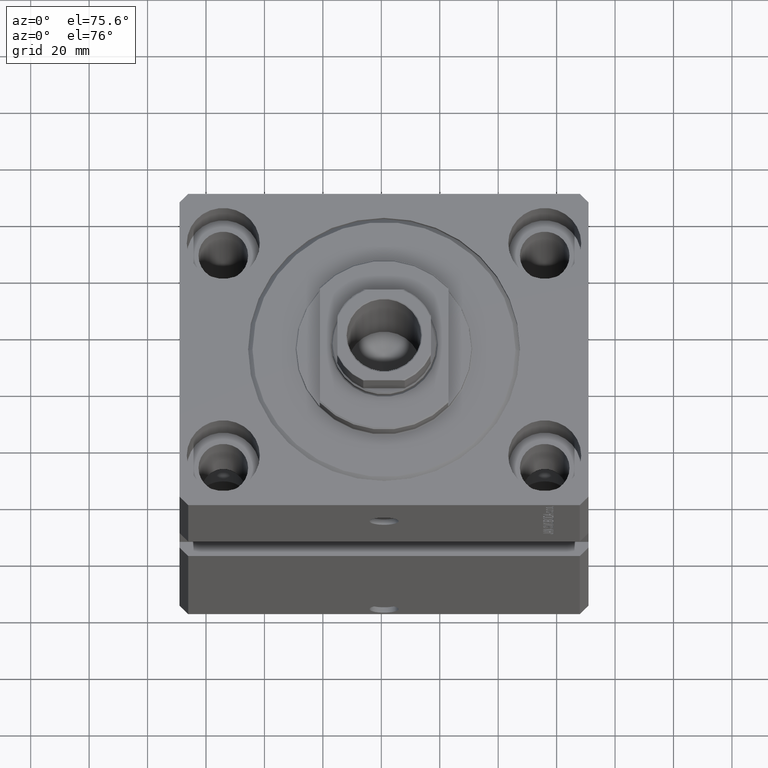
[diagram: clean part render]
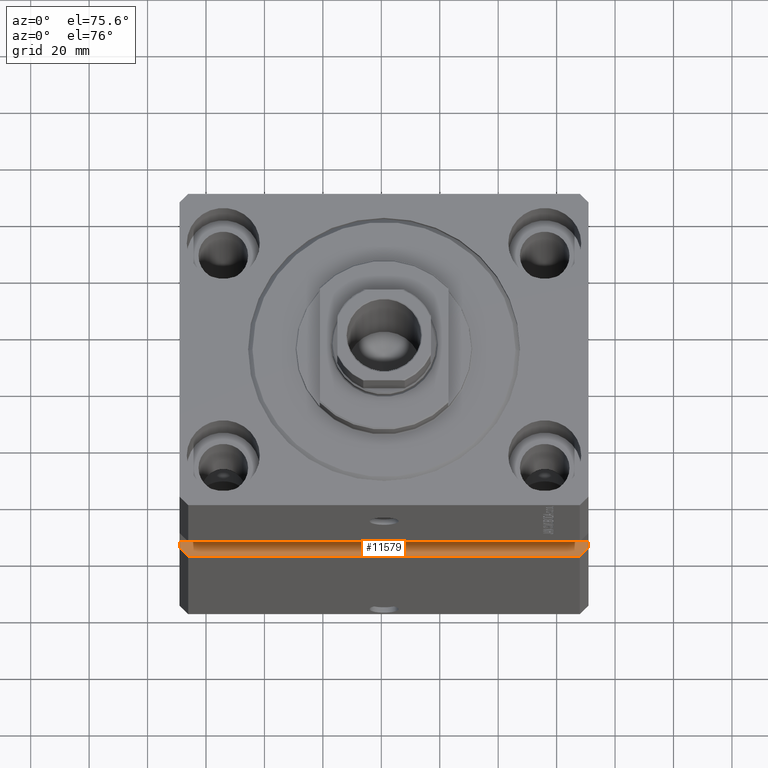
[diagram: same view with one face highlighted and labeled with its STEP entity id]
A machine part, auxiliary view. The second image highlights one B-rep face of the part: STEP entity #11579.
In plain terms, the highlighted planar face has unit normal (0, 0, -1).
Its self-contained STEP definition (entity closure, byte-faithful):
#552 = VERTEX_POINT ( 'NONE', #31890 ) ;
#634 = ORIENTED_EDGE ( 'NONE', *, *, #41979, .F. ) ;
#1165 = CARTESIAN_POINT ( 'NONE',  ( -70.00000000000001421, -49.99999999999999289, -70.00000000000000000 ) ) ;
#1819 = PLANE ( 'NONE',  #9339 ) ;
#1998 = CARTESIAN_POINT ( 'NONE',  ( 67.00000000000001421, -54.99999999999997868, -70.00000000000000000 ) ) ;
#2161 = CARTESIAN_POINT ( 'NONE',  ( 70.00000000000001421, -49.99999999999997868, -70.00000000000000000 ) ) ;
#4489 = VERTEX_POINT ( 'NONE', #8647 ) ;
#5198 = LINE ( 'NONE', #1998, #37014 ) ;
#5603 = DIRECTION ( 'NONE',  ( 1.176083712526788232E-16, -1.000000000000000000, -0.000000000000000000 ) ) ;
#5820 = CARTESIAN_POINT ( 'NONE',  ( -67.00000000000002842, -54.99999999999999289, -70.00000000000000000 ) ) ;
#7922 = ORIENTED_EDGE ( 'NONE', *, *, #28996, .T. ) ;
#8317 = LINE ( 'NONE', #1165, #31719 ) ;
#8647 = CARTESIAN_POINT ( 'NONE',  ( 70.00000000000001421, -49.99999999999997868, -70.00000000000000000 ) ) ;
#9339 = AXIS2_PLACEMENT_3D ( 'NONE', #32166, #25013, #28218 ) ;
#9393 = DIRECTION ( 'NONE',  ( 0.7071067811865474617, 0.7071067811865474617, 0.000000000000000000 ) ) ;
#9658 = VERTEX_POINT ( 'NONE', #41080 ) ;
#10868 = EDGE_CURVE ( 'NONE', #9658, #31464, #5198, .T. ) ;
#11579 = ADVANCED_FACE ( 'NONE', ( #28710 ), #1819, .F. ) ;
#14368 = ORIENTED_EDGE ( 'NONE', *, *, #37820, .T. ) ;
#14546 = CARTESIAN_POINT ( 'NONE',  ( -70.00000000000001421, -51.99999999999999289, -70.00000000000000000 ) ) ;
#15550 = VERTEX_POINT ( 'NONE', #5820 ) ;
#17226 = DIRECTION ( 'NONE',  ( 1.176083712526788232E-16, -1.000000000000000000, -0.000000000000000000 ) ) ;
#17766 = CARTESIAN_POINT ( 'NONE',  ( -70.00000000000001421, -49.99999999999999289, -70.00000000000000000 ) ) ;
#18363 = VECTOR ( 'NONE', #33523, 1000.000000000000000 ) ;
#21473 = EDGE_CURVE ( 'NONE', #4489, #31464, #28312, .T. ) ;
#21911 = LINE ( 'NONE', #40417, #47205 ) ;
#22896 = ORIENTED_EDGE ( 'NONE', *, *, #21473, .F. ) ;
#22981 = ORIENTED_EDGE ( 'NONE', *, *, #10868, .T. ) ;
#25013 = DIRECTION ( 'NONE',  ( 0.000000000000000000, 0.000000000000000000, -1.000000000000000000 ) ) ;
#27686 = ORIENTED_EDGE ( 'NONE', *, *, #41412, .T. ) ;
#28218 = DIRECTION ( 'NONE',  ( -1.000000000000000000, 0.000000000000000000, -0.000000000000000000 ) ) ;
#28312 = LINE ( 'NONE', #2161, #39160 ) ;
#28710 = FACE_OUTER_BOUND ( 'NONE', #38649, .T. ) ;
#28996 = EDGE_CURVE ( 'NONE', #15550, #9658, #21911, .T. ) ;
#31464 = VERTEX_POINT ( 'NONE', #46312 ) ;
#31719 = VECTOR ( 'NONE', #5603, 1000.000000000000000 ) ;
#31816 = LINE ( 'NONE', #17766, #18363 ) ;
#31890 = CARTESIAN_POINT ( 'NONE',  ( -70.00000000000001421, -49.99999999999999289, -70.00000000000000000 ) ) ;
#32166 = CARTESIAN_POINT ( 'NONE',  ( -70.00000000000001421, -49.99999999999999289, -70.00000000000000000 ) ) ;
#33488 = DIRECTION ( 'NONE',  ( 1.000000000000000000, 9.912705577010323084E-17, 0.000000000000000000 ) ) ;
#33523 = DIRECTION ( 'NONE',  ( 1.000000000000000000, 9.912705577010323084E-17, 0.000000000000000000 ) ) ;
#37014 = VECTOR ( 'NONE', #9393, 1000.000000000000114 ) ;
#37820 = EDGE_CURVE ( 'NONE', #41913, #15550, #41429, .T. ) ;
#38649 = EDGE_LOOP ( 'NONE', ( #22981, #22896, #634, #27686, #14368, #7922 ) ) ;
#39160 = VECTOR ( 'NONE', #17226, 1000.000000000000000 ) ;
#40417 = CARTESIAN_POINT ( 'NONE',  ( -70.00000000000001421, -54.99999999999999289, -70.00000000000000000 ) ) ;
#40697 = DIRECTION ( 'NONE',  ( 0.7071067811865466846, -0.7071067811865483499, 0.000000000000000000 ) ) ;
#41080 = CARTESIAN_POINT ( 'NONE',  ( 67.00000000000001421, -54.99999999999997868, -70.00000000000000000 ) ) ;
#41412 = EDGE_CURVE ( 'NONE', #552, #41913, #8317, .T. ) ;
#41429 = LINE ( 'NONE', #14546, #43423 ) ;
#41913 = VERTEX_POINT ( 'NONE', #47371 ) ;
#41979 = EDGE_CURVE ( 'NONE', #552, #4489, #31816, .T. ) ;
#43423 = VECTOR ( 'NONE', #40697, 1000.000000000000000 ) ;
#46312 = CARTESIAN_POINT ( 'NONE',  ( 70.00000000000001421, -51.99999999999997868, -70.00000000000000000 ) ) ;
#47205 = VECTOR ( 'NONE', #33488, 1000.000000000000000 ) ;
#47371 = CARTESIAN_POINT ( 'NONE',  ( -70.00000000000001421, -51.99999999999999289, -70.00000000000000000 ) ) ;